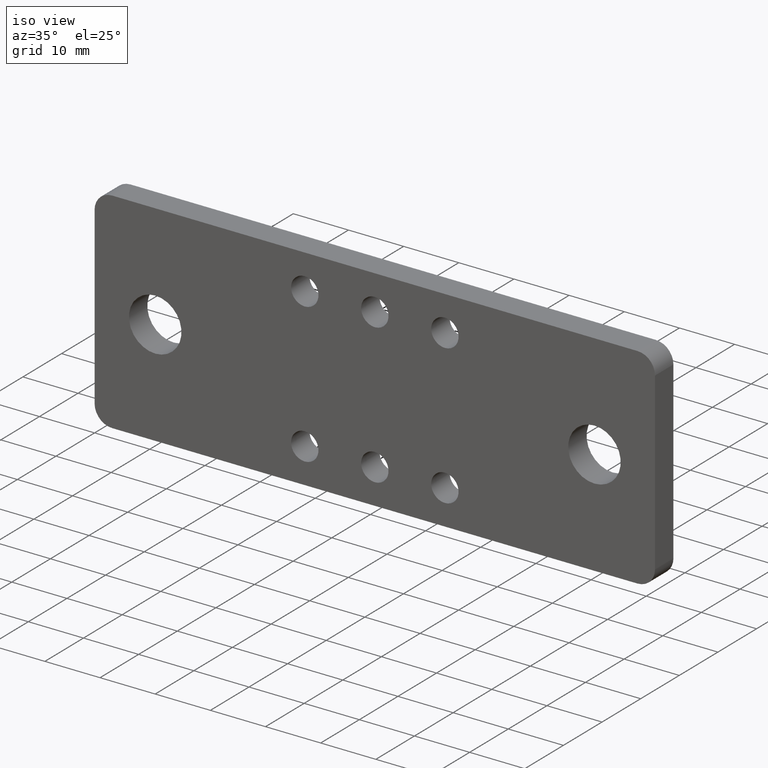
[diagram: clean part render]
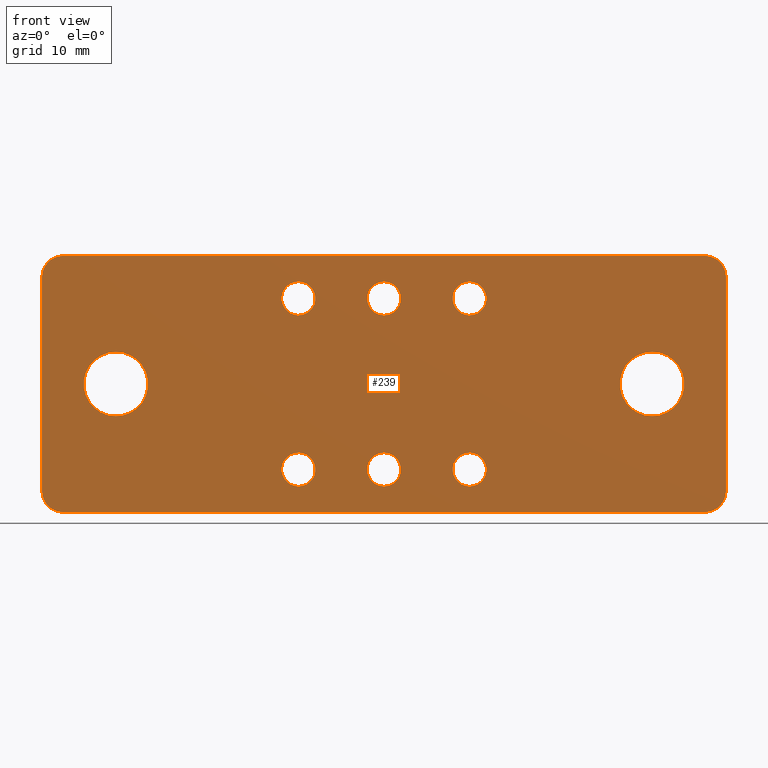
[diagram: tour spotlight — one face highlighted and labeled with its STEP entity id]
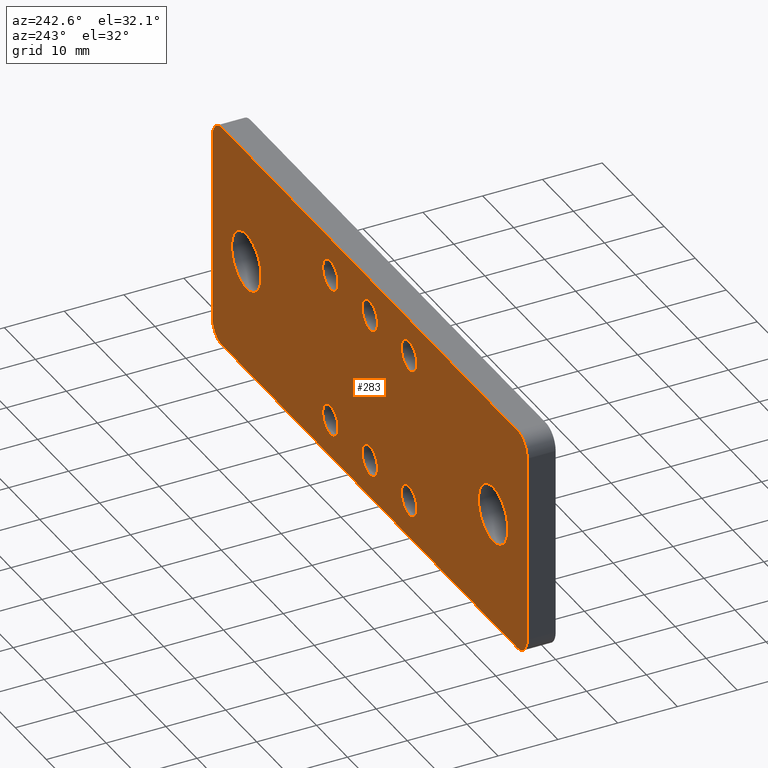
[diagram: tour spotlight — one face highlighted and labeled with its STEP entity id]
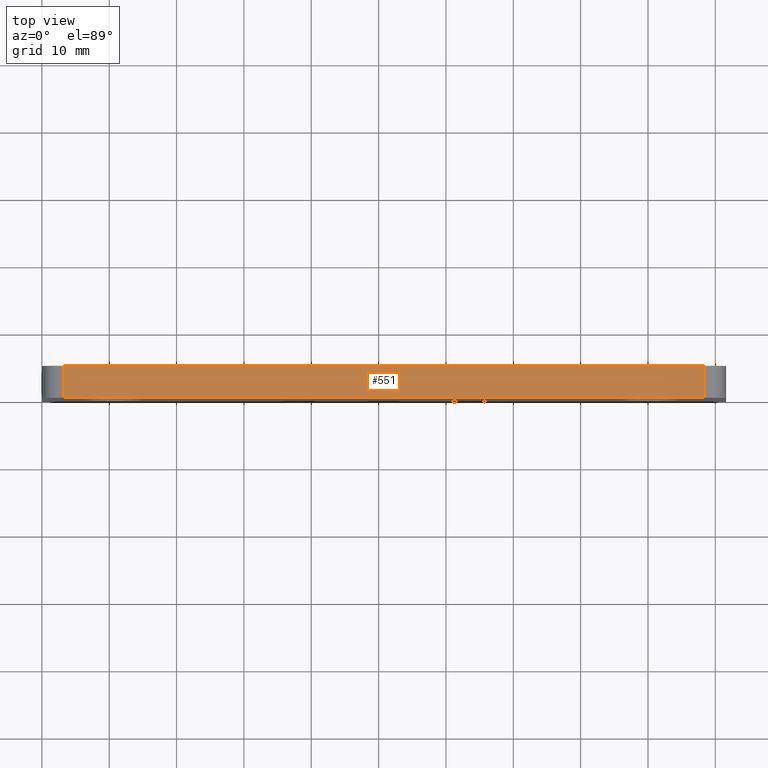
[diagram: tour spotlight — one face highlighted and labeled with its STEP entity id]
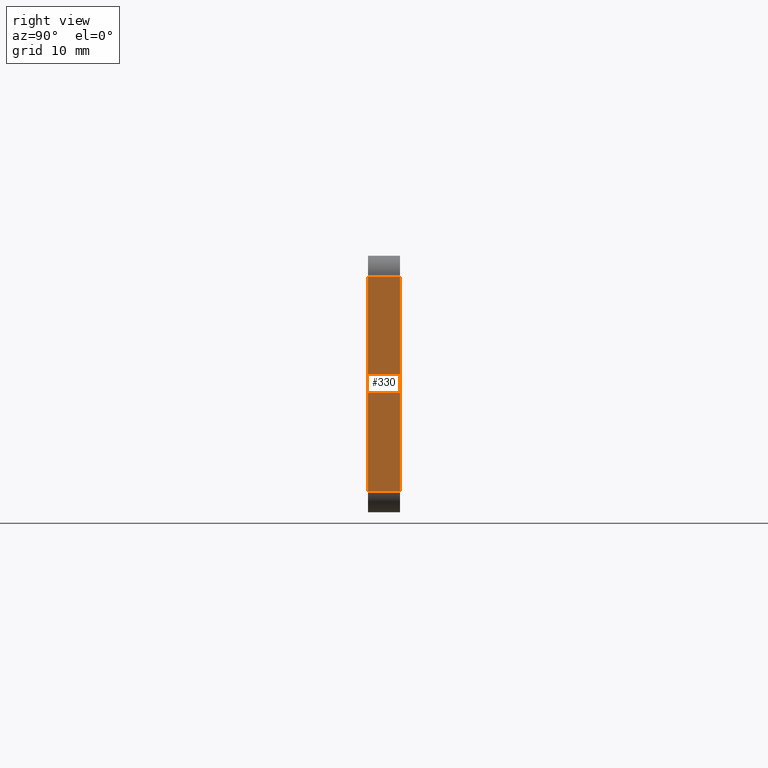
[diagram: tour spotlight — one face highlighted and labeled with its STEP entity id]
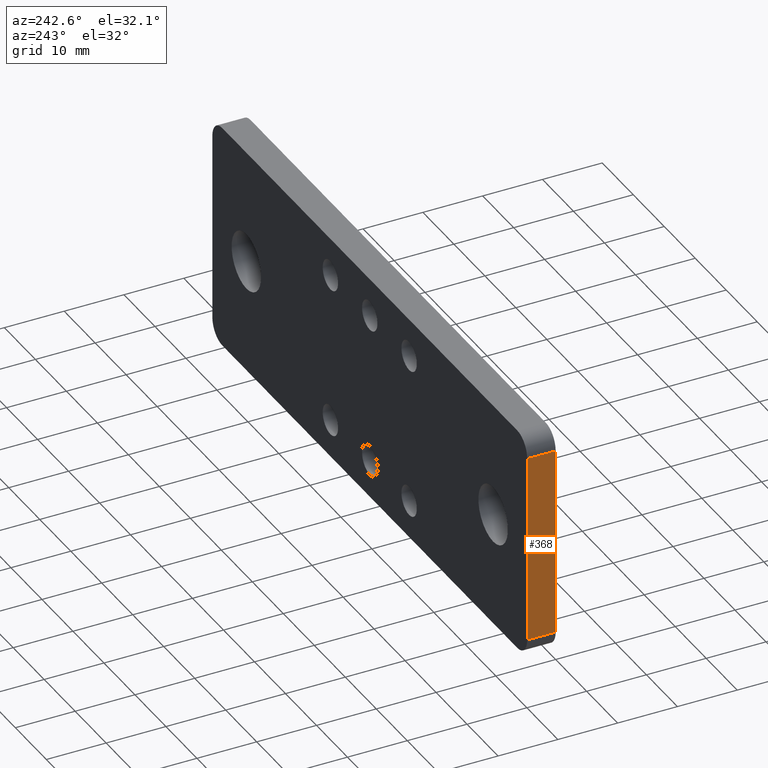
[diagram: tour spotlight — one face highlighted and labeled with its STEP entity id]
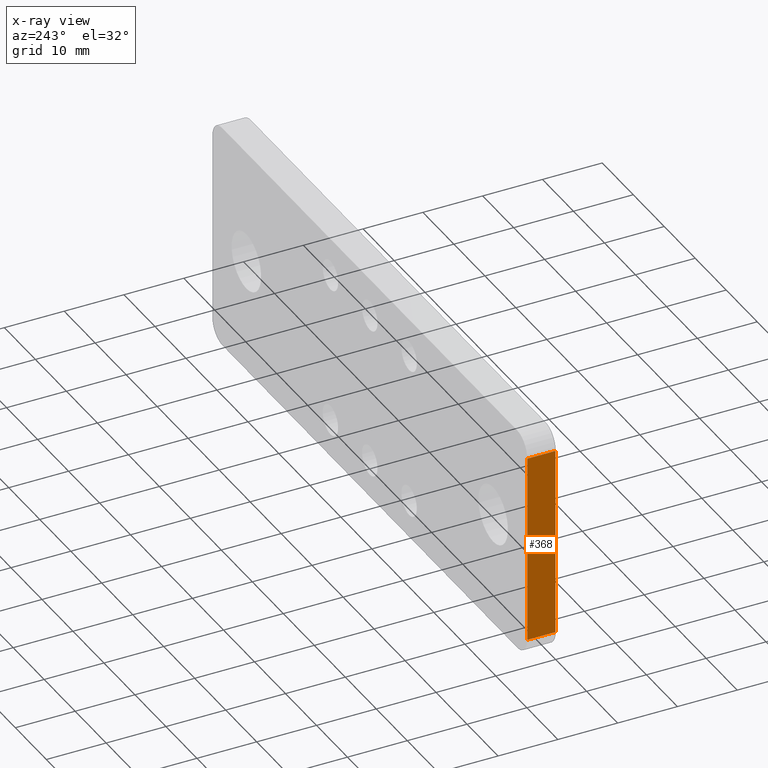
[diagram: x-ray of the same camera — body ghosted, this tour face saturated]
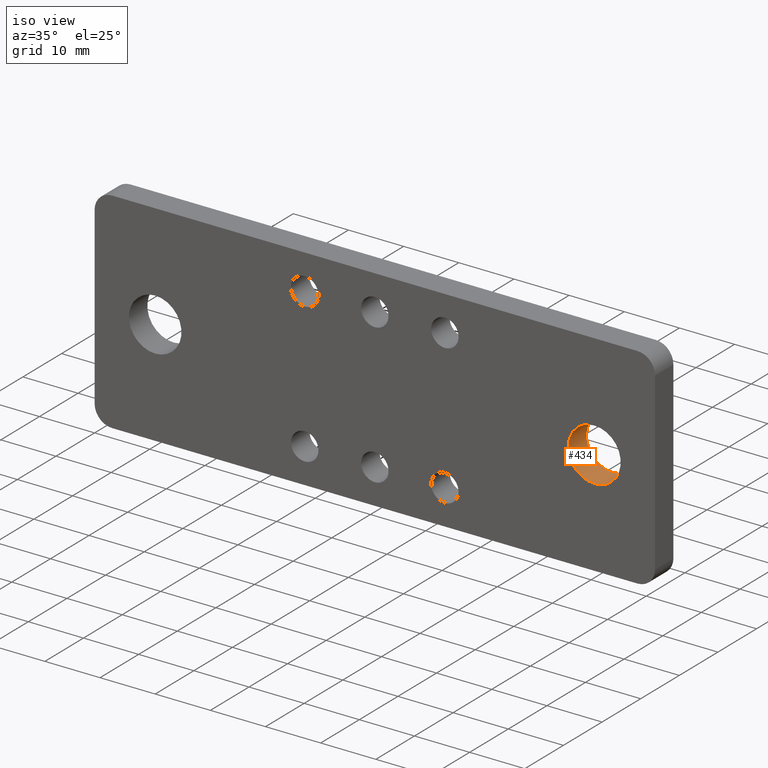
[diagram: tour spotlight — one face highlighted and labeled with its STEP entity id]
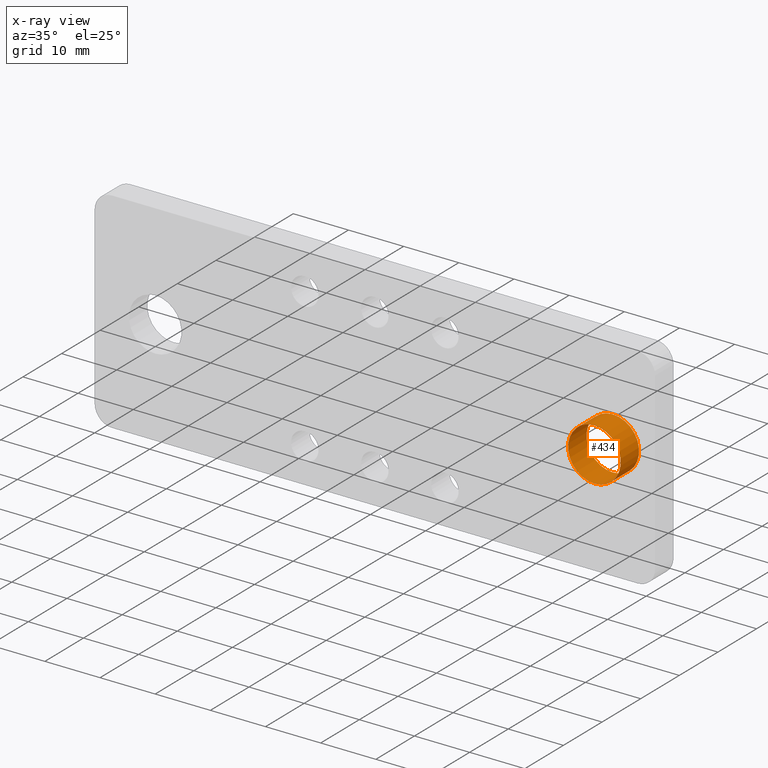
[diagram: x-ray of the same camera — body ghosted, this tour face saturated]
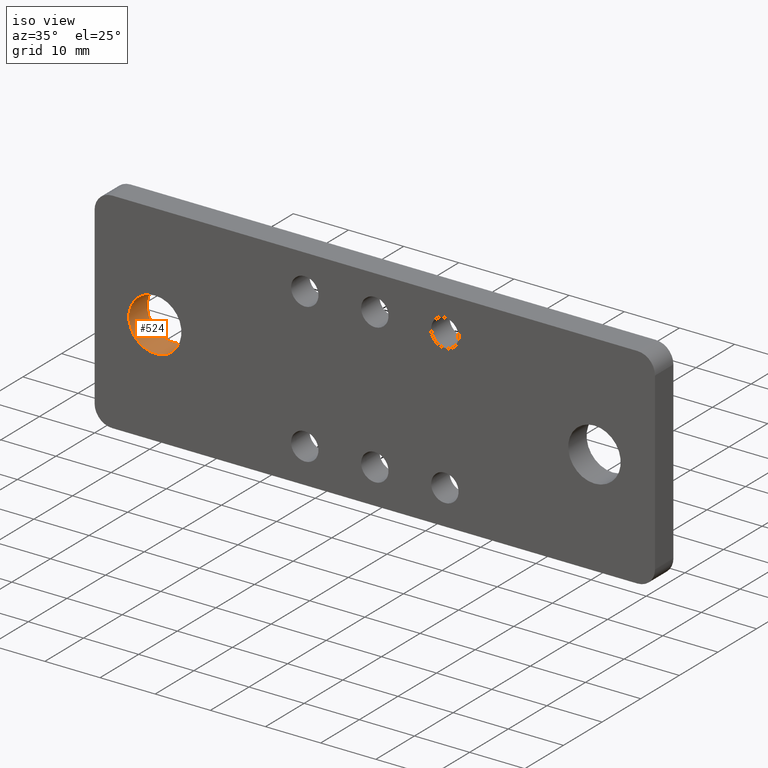
[diagram: tour spotlight — one face highlighted and labeled with its STEP entity id]
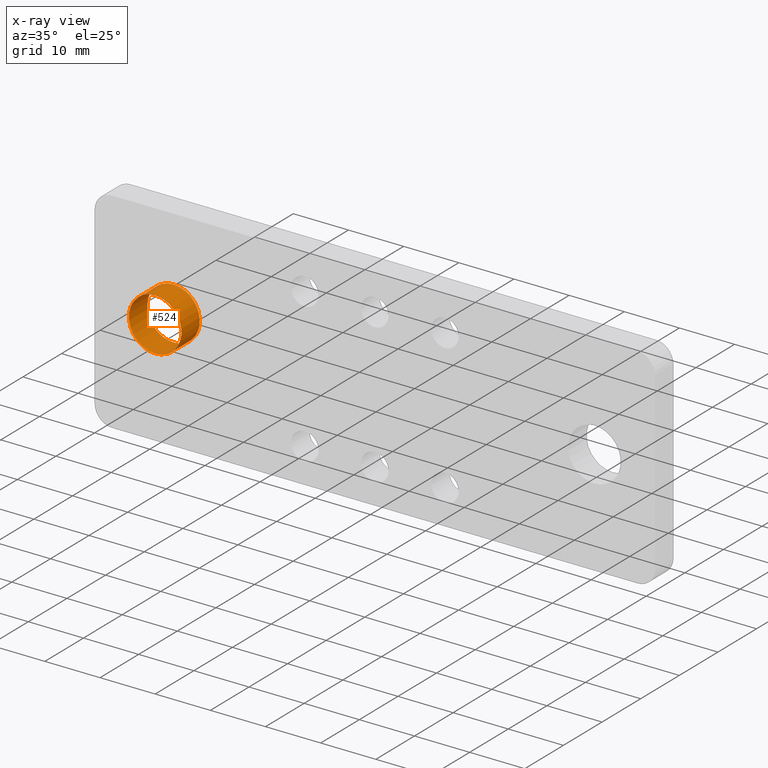
[diagram: x-ray of the same camera — body ghosted, this tour face saturated]
A machine part: a face-by-face anatomy tour. The part has 18 B-rep faces; the first image is the clean iso view, then the 7 largest visible faces are spotlighted one at a time (largest first), each with its STEP entity span.

Face 1 — front view, entity #239. In plain terms, the highlighted planar face has unit normal (0, -1, 0).
Definition (entity closure, byte-faithful):
#2 = ORIENTED_EDGE ( 'NONE', *, *, #118, .T. ) ;
#4 = AXIS2_PLACEMENT_3D ( 'NONE', #260, #274, #79 ) ;
#5 = ORIENTED_EDGE ( 'NONE', *, *, #437, .T. ) ;
#9 = AXIS2_PLACEMENT_3D ( 'NONE', #493, #564, #57 ) ;
#10 = AXIS2_PLACEMENT_3D ( 'NONE', #374, #372, #30 ) ;
#11 = AXIS2_PLACEMENT_3D ( 'NONE', #459, #611, #449 ) ;
#12 = EDGE_CURVE ( 'NONE', #347, #202, #545, .T. ) ;
#14 = VERTEX_POINT ( 'NONE', #92 ) ;
#21 = EDGE_LOOP ( 'NONE', ( #250, #2, #267, #361, #106, #502, #566, #311 ) ) ;
#25 = EDGE_CURVE ( 'NONE', #293, #202, #398, .T. ) ;
#29 = CARTESIAN_POINT ( 'NONE',  ( 0.0000000000000000000, 0.0000000000000000000, 0.0000000000000000000 ) ) ;
#30 = DIRECTION ( 'NONE',  ( 0.0000000000000000000, 0.0000000000000000000, -1.000000000000000000 ) ) ;
#36 = AXIS2_PLACEMENT_3D ( 'NONE', #402, #201, #422 ) ;
#45 = DIRECTION ( 'NONE',  ( 0.0000000000000000000, 1.000000000000000000, 0.0000000000000000000 ) ) ;
#47 = FACE_OUTER_BOUND ( 'NONE', #21, .T. ) ;
#49 = CARTESIAN_POINT ( 'NONE',  ( 3.875000000000000000, 0.0000000000000000000, 4.839273588776693858E-16 ) ) ;
#51 = ORIENTED_EDGE ( 'NONE', *, *, #102, .T. ) ;
#53 = CARTESIAN_POINT ( 'NONE',  ( 2.500000000000000000, 0.0000000000000000000, -1.151999999999999913 ) ) ;
#57 = DIRECTION ( 'NONE',  ( 0.0000000000000000000, 0.0000000000000000000, 1.000000000000000000 ) ) ;
#58 = AXIS2_PLACEMENT_3D ( 'NONE', #538, #45, #518 ) ;
#63 = CIRCLE ( 'NONE', #10, 0.09800000000000015643 ) ;
#65 = AXIS2_PLACEMENT_3D ( 'NONE', #281, #295, #305 ) ;
#74 = CARTESIAN_POINT ( 'NONE',  ( 3.875000000000000000, 0.0000000000000000000, -1.375000000000000222 ) ) ;
#79 = DIRECTION ( 'NONE',  ( 0.0000000000000000000, 0.0000000000000000000, -1.000000000000000000 ) ) ;
#87 = DIRECTION ( 'NONE',  ( 0.0000000000000000000, 0.0000000000000000000, -1.000000000000000000 ) ) ;
#88 = EDGE_LOOP ( 'NONE', ( #51 ) ) ;
#89 = CARTESIAN_POINT ( 'NONE',  ( 1.499999999999999778, 0.0000000000000000000, -0.1519999999999999130 ) ) ;
#92 = CARTESIAN_POINT ( 'NONE',  ( 0.4325000000000001066, 0.0000000000000000000, -0.5625000000000001110 ) ) ;
#93 = EDGE_CURVE ( 'NONE', #293, #223, #296, .T. ) ;
#95 = CARTESIAN_POINT ( 'NONE',  ( 3.567499999999999449, 0.0000000000000000000, -0.5625000000000001110 ) ) ;
#98 = CARTESIAN_POINT ( 'NONE',  ( 2.500000000000000000, 0.0000000000000000000, -0.3480000000000001981 ) ) ;
#102 = EDGE_CURVE ( 'NONE', #469, #469, #63, .T. ) ;
#103 = EDGE_CURVE ( 'NONE', #254, #254, #417, .T. ) ;
#105 = EDGE_CURVE ( 'NONE', #543, #223, #569, .T. ) ;
#106 = ORIENTED_EDGE ( 'NONE', *, *, #120, .F. ) ;
#108 = CARTESIAN_POINT ( 'NONE',  ( 2.000000000000000000, 0.0000000000000000000, -1.152000000000000135 ) ) ;
#109 = VERTEX_POINT ( 'NONE', #98 ) ;
#118 = EDGE_CURVE ( 'NONE', #543, #196, #152, .T. ) ;
#120 = EDGE_CURVE ( 'NONE', #347, #233, #172, .T. ) ;
#145 = EDGE_LOOP ( 'NONE', ( #176 ) ) ;
#152 = CIRCLE ( 'NONE', #11, 0.1249999999999999029 ) ;
#158 = CARTESIAN_POINT ( 'NONE',  ( 4.000000000000000000, 0.0000000000000000000, -1.375000000000000222 ) ) ;
#159 = CIRCLE ( 'NONE', #9, 0.09800000000000015643 ) ;
#165 = EDGE_CURVE ( 'NONE', #563, #563, #159, .T. ) ;
#172 = LINE ( 'NONE', #440, #487 ) ;
#176 = ORIENTED_EDGE ( 'NONE', *, *, #340, .T. ) ;
#181 = ORIENTED_EDGE ( 'NONE', *, *, #183, .T. ) ;
#183 = EDGE_CURVE ( 'NONE', #14, #14, #385, .T. ) ;
#186 = FACE_BOUND ( 'NONE', #595, .T. ) ;
#194 = EDGE_CURVE ( 'NONE', #473, #196, #285, .T. ) ;
#195 = DIRECTION ( 'NONE',  ( 3.055308241372560376E-27, -0.0000000000000000000, 1.000000000000000000 ) ) ;
#196 = VERTEX_POINT ( 'NONE', #554 ) ;
#201 = DIRECTION ( 'NONE',  ( 0.0000000000000000000, -1.000000000000000000, 0.0000000000000000000 ) ) ;
#202 = VERTEX_POINT ( 'NONE', #49 ) ;
#204 = CARTESIAN_POINT ( 'NONE',  ( 2.500000000000000000, 0.0000000000000000000, -0.2500000000000000555 ) ) ;
#207 = FACE_BOUND ( 'NONE', #145, .T. ) ;
#208 = CARTESIAN_POINT ( 'NONE',  ( 4.000000000000000000, 0.0000000000000000000, -0.1249999999999995004 ) ) ;
#217 = DIRECTION ( 'NONE',  ( 0.0000000000000000000, 0.0000000000000000000, 1.000000000000000000 ) ) ;
#223 = VERTEX_POINT ( 'NONE', #445 ) ;
#227 = EDGE_LOOP ( 'NONE', ( #447 ) ) ;
#233 = VERTEX_POINT ( 'NONE', #158 ) ;
#239 = ADVANCED_FACE ( 'NONE', ( #276, #320, #533, #333, #47, #448, #186, #207, #317 ), #444, .T. ) ;
#243 = CIRCLE ( 'NONE', #592, 0.09800000000000015643 ) ;
#249 = AXIS2_PLACEMENT_3D ( 'NONE', #395, #577, #400 ) ;
#250 = ORIENTED_EDGE ( 'NONE', *, *, #105, .F. ) ;
#252 = DIRECTION ( 'NONE',  ( 0.0000000000000000000, 1.000000000000000000, 0.0000000000000000000 ) ) ;
#254 = VERTEX_POINT ( 'NONE', #53 ) ;
#260 = CARTESIAN_POINT ( 'NONE',  ( 2.000000000000000000, 0.0000000000000000000, -0.2500000000000000555 ) ) ;
#267 = ORIENTED_EDGE ( 'NONE', *, *, #194, .F. ) ;
#268 = AXIS2_PLACEMENT_3D ( 'NONE', #353, #488, #378 ) ;
#274 = DIRECTION ( 'NONE',  ( 0.0000000000000000000, 1.000000000000000000, -0.0000000000000000000 ) ) ;
#276 = FACE_BOUND ( 'NONE', #227, .T. ) ;
#281 = CARTESIAN_POINT ( 'NONE',  ( 3.875000000000000000, 0.0000000000000000000, -0.1249999999999995004 ) ) ;
#282 = EDGE_CURVE ( 'NONE', #571, #571, #425, .T. ) ;
#285 = LINE ( 'NONE', #616, #432 ) ;
#293 = VERTEX_POINT ( 'NONE', #430 ) ;
#295 = DIRECTION ( 'NONE',  ( 0.0000000000000000000, -1.000000000000000000, -0.0000000000000000000 ) ) ;
#296 = CIRCLE ( 'NONE', #268, 0.1250000000000000000 ) ;
#305 = DIRECTION ( 'NONE',  ( 0.0000000000000000000, 0.0000000000000000000, -1.000000000000000000 ) ) ;
#310 = VECTOR ( 'NONE', #195, 39.37007874015748143 ) ;
#311 = ORIENTED_EDGE ( 'NONE', *, *, #93, .T. ) ;
#316 = VERTEX_POINT ( 'NONE', #95 ) ;
#317 = FACE_BOUND ( 'NONE', #596, .T. ) ;
#320 = FACE_BOUND ( 'NONE', #88, .T. ) ;
#333 = FACE_BOUND ( 'NONE', #496, .T. ) ;
#334 = CIRCLE ( 'NONE', #570, 0.1874999999999999167 ) ;
#340 = EDGE_CURVE ( 'NONE', #109, #109, #243, .T. ) ;
#347 = VERTEX_POINT ( 'NONE', #208 ) ;
#348 = CIRCLE ( 'NONE', #578, 0.09799999999999987887 ) ;
#353 = CARTESIAN_POINT ( 'NONE',  ( 0.1250000000000000000, 0.0000000000000000000, -0.1249999999999999584 ) ) ;
#361 = ORIENTED_EDGE ( 'NONE', *, *, #608, .T. ) ;
#363 = ORIENTED_EDGE ( 'NONE', *, *, #165, .T. ) ;
#367 = DIRECTION ( 'NONE',  ( 0.0000000000000000000, -1.000000000000000000, -0.0000000000000000000 ) ) ;
#372 = DIRECTION ( 'NONE',  ( 0.0000000000000000000, 1.000000000000000000, -0.0000000000000000000 ) ) ;
#374 = CARTESIAN_POINT ( 'NONE',  ( 1.499999999999999778, 0.0000000000000000000, -1.250000000000000000 ) ) ;
#378 = DIRECTION ( 'NONE',  ( 0.0000000000000000000, 0.0000000000000000000, -1.000000000000000000 ) ) ;
#383 = CARTESIAN_POINT ( 'NONE',  ( 0.0000000000000000000, 0.0000000000000000000, 0.0000000000000000000 ) ) ;
#385 = CIRCLE ( 'NONE', #58, 0.1874999999999999722 ) ;
#391 = DIRECTION ( 'NONE',  ( -1.000000000000000000, -0.0000000000000000000, -0.0000000000000000000 ) ) ;
#393 = EDGE_CURVE ( 'NONE', #424, #424, #348, .T. ) ;
#395 = CARTESIAN_POINT ( 'NONE',  ( 2.500000000000000000, 0.0000000000000000000, -1.250000000000000000 ) ) ;
#398 = LINE ( 'NONE', #29, #410 ) ;
#400 = DIRECTION ( 'NONE',  ( 0.0000000000000000000, 0.0000000000000000000, 1.000000000000000000 ) ) ;
#402 = CARTESIAN_POINT ( 'NONE',  ( 0.0000000000000000000, 0.0000000000000000000, 0.0000000000000000000 ) ) ;
#405 = CARTESIAN_POINT ( 'NONE',  ( 2.000000000000000000, 0.0000000000000000000, -0.3479999999999999760 ) ) ;
#410 = VECTOR ( 'NONE', #599, 39.37007874015748143 ) ;
#417 = CIRCLE ( 'NONE', #249, 0.09800000000000015643 ) ;
#422 = DIRECTION ( 'NONE',  ( 0.0000000000000000000, 0.0000000000000000000, -1.000000000000000000 ) ) ;
#424 = VERTEX_POINT ( 'NONE', #108 ) ;
#425 = CIRCLE ( 'NONE', #4, 0.09799999999999987887 ) ;
#430 = CARTESIAN_POINT ( 'NONE',  ( 0.1249999999999999861, 0.0000000000000000000, 1.561055996379578366E-17 ) ) ;
#432 = VECTOR ( 'NONE', #391, 39.37007874015748143 ) ;
#437 = EDGE_CURVE ( 'NONE', #316, #316, #334, .T. ) ;
#440 = CARTESIAN_POINT ( 'NONE',  ( 4.000000000000000000, 0.0000000000000000000, 4.995379188414651756E-16 ) ) ;
#442 = DIRECTION ( 'NONE',  ( 0.0000000000000000000, 0.0000000000000000000, -1.000000000000000000 ) ) ;
#444 = PLANE ( 'NONE',  #36 ) ;
#445 = CARTESIAN_POINT ( 'NONE',  ( -3.819135301715697780E-28, 0.0000000000000000000, -0.1249999999999999306 ) ) ;
#447 = ORIENTED_EDGE ( 'NONE', *, *, #282, .T. ) ;
#448 = FACE_BOUND ( 'NONE', #617, .T. ) ;
#449 = DIRECTION ( 'NONE',  ( 0.0000000000000000000, 0.0000000000000000000, -1.000000000000000000 ) ) ;
#459 = CARTESIAN_POINT ( 'NONE',  ( 0.1250000000000000000, 0.0000000000000000000, -1.375000000000000222 ) ) ;
#469 = VERTEX_POINT ( 'NONE', #603 ) ;
#473 = VERTEX_POINT ( 'NONE', #485 ) ;
#474 = CIRCLE ( 'NONE', #527, 0.1249999999999999029 ) ;
#479 = DIRECTION ( 'NONE',  ( 0.0000000000000000000, 1.000000000000000000, 0.0000000000000000000 ) ) ;
#480 = DIRECTION ( 'NONE',  ( 0.0000000000000000000, 0.0000000000000000000, 1.000000000000000000 ) ) ;
#482 = ORIENTED_EDGE ( 'NONE', *, *, #103, .T. ) ;
#483 = CARTESIAN_POINT ( 'NONE',  ( 3.567499999999999449, 0.0000000000000000000, -0.7500000000000001110 ) ) ;
#485 = CARTESIAN_POINT ( 'NONE',  ( 3.875000000000000000, 0.0000000000000000000, -1.500000000000000222 ) ) ;
#487 = VECTOR ( 'NONE', #442, 39.37007874015748143 ) ;
#488 = DIRECTION ( 'NONE',  ( 0.0000000000000000000, -1.000000000000000000, -0.0000000000000000000 ) ) ;
#493 = CARTESIAN_POINT ( 'NONE',  ( 1.499999999999999778, 0.0000000000000000000, -0.2500000000000000555 ) ) ;
#496 = EDGE_LOOP ( 'NONE', ( #181 ) ) ;
#502 = ORIENTED_EDGE ( 'NONE', *, *, #12, .T. ) ;
#516 = DIRECTION ( 'NONE',  ( 0.0000000000000000000, 1.000000000000000000, -0.0000000000000000000 ) ) ;
#518 = DIRECTION ( 'NONE',  ( 0.0000000000000000000, 0.0000000000000000000, 1.000000000000000000 ) ) ;
#527 = AXIS2_PLACEMENT_3D ( 'NONE', #74, #367, #87 ) ;
#533 = FACE_BOUND ( 'NONE', #559, .T. ) ;
#538 = CARTESIAN_POINT ( 'NONE',  ( 0.4325000000000001066, 0.0000000000000000000, -0.7500000000000001110 ) ) ;
#540 = CARTESIAN_POINT ( 'NONE',  ( 2.000000000000000000, 0.0000000000000000000, -1.250000000000000000 ) ) ;
#543 = VERTEX_POINT ( 'NONE', #584 ) ;
#545 = CIRCLE ( 'NONE', #65, 0.1250000000000000278 ) ;
#554 = CARTESIAN_POINT ( 'NONE',  ( 0.1250000000000000000, 0.0000000000000000000, -1.500000000000000222 ) ) ;
#559 = EDGE_LOOP ( 'NONE', ( #567 ) ) ;
#563 = VERTEX_POINT ( 'NONE', #89 ) ;
#564 = DIRECTION ( 'NONE',  ( 0.0000000000000000000, 1.000000000000000000, 0.0000000000000000000 ) ) ;
#566 = ORIENTED_EDGE ( 'NONE', *, *, #25, .F. ) ;
#567 = ORIENTED_EDGE ( 'NONE', *, *, #393, .T. ) ;
#569 = LINE ( 'NONE', #383, #310 ) ;
#570 = AXIS2_PLACEMENT_3D ( 'NONE', #483, #479, #480 ) ;
#571 = VERTEX_POINT ( 'NONE', #405 ) ;
#577 = DIRECTION ( 'NONE',  ( 0.0000000000000000000, 1.000000000000000000, 0.0000000000000000000 ) ) ;
#578 = AXIS2_PLACEMENT_3D ( 'NONE', #540, #252, #217 ) ;
#584 = CARTESIAN_POINT ( 'NONE',  ( -4.201048831887269307E-27, 0.0000000000000000000, -1.374999999999999778 ) ) ;
#588 = DIRECTION ( 'NONE',  ( 0.0000000000000000000, 0.0000000000000000000, -1.000000000000000000 ) ) ;
#592 = AXIS2_PLACEMENT_3D ( 'NONE', #204, #516, #588 ) ;
#595 = EDGE_LOOP ( 'NONE', ( #482 ) ) ;
#596 = EDGE_LOOP ( 'NONE', ( #363 ) ) ;
#599 = DIRECTION ( 'NONE',  ( 1.000000000000000000, 0.0000000000000000000, 1.248844797103662939E-16 ) ) ;
#603 = CARTESIAN_POINT ( 'NONE',  ( 1.499999999999999778, 0.0000000000000000000, -1.348000000000000309 ) ) ;
#608 = EDGE_CURVE ( 'NONE', #473, #233, #474, .T. ) ;
#611 = DIRECTION ( 'NONE',  ( 0.0000000000000000000, -1.000000000000000000, -0.0000000000000000000 ) ) ;
#616 = CARTESIAN_POINT ( 'NONE',  ( -4.582962362058840026E-27, 0.0000000000000000000, -1.500000000000000222 ) ) ;
#617 = EDGE_LOOP ( 'NONE', ( #5 ) ) ;

Face 2 — auxiliary view, entity #283. In plain terms, the highlighted planar face has unit normal (0, -1, 0).
Definition (entity closure, byte-faithful):
#17 = ORIENTED_EDGE ( 'NONE', *, *, #112, .F. ) ;
#18 = CIRCLE ( 'NONE', #259, 0.09800000000000015643 ) ;
#19 = EDGE_LOOP ( 'NONE', ( #246 ) ) ;
#22 = AXIS2_PLACEMENT_3D ( 'NONE', #472, #505, #498 ) ;
#24 = EDGE_LOOP ( 'NONE', ( #213 ) ) ;
#26 = VECTOR ( 'NONE', #504, 39.37007874015748143 ) ;
#27 = DIRECTION ( 'NONE',  ( 0.0000000000000000000, 0.0000000000000000000, 1.000000000000000000 ) ) ;
#28 = ORIENTED_EDGE ( 'NONE', *, *, #174, .T. ) ;
#38 = EDGE_CURVE ( 'NONE', #189, #548, #304, .T. ) ;
#41 = CIRCLE ( 'NONE', #54, 0.09799999999999987887 ) ;
#43 = FACE_BOUND ( 'NONE', #64, .T. ) ;
#54 = AXIS2_PLACEMENT_3D ( 'NONE', #357, #501, #27 ) ;
#55 = FACE_BOUND ( 'NONE', #67, .T. ) ;
#60 = EDGE_CURVE ( 'NONE', #548, #156, #562, .T. ) ;
#62 = CARTESIAN_POINT ( 'NONE',  ( 2.000000000000000000, 0.1875000000000000278, -0.3479999999999999760 ) ) ;
#64 = EDGE_LOOP ( 'NONE', ( #351 ) ) ;
#66 = ORIENTED_EDGE ( 'NONE', *, *, #60, .T. ) ;
#67 = EDGE_LOOP ( 'NONE', ( #327 ) ) ;
#69 = VECTOR ( 'NONE', #561, 39.37007874015748143 ) ;
#70 = VERTEX_POINT ( 'NONE', #91 ) ;
#71 = CARTESIAN_POINT ( 'NONE',  ( 3.567499999999999449, 0.1875000000000000278, -0.5625000000000001110 ) ) ;
#78 = CARTESIAN_POINT ( 'NONE',  ( 2.000000000000000000, 0.1875000000000000278, -1.152000000000000135 ) ) ;
#82 = CIRCLE ( 'NONE', #598, 0.09799999999999987887 ) ;
#83 = AXIS2_PLACEMENT_3D ( 'NONE', #537, #292, #544 ) ;
#86 = CARTESIAN_POINT ( 'NONE',  ( 0.4325000000000001066, 0.1875000000000000278, -0.5625000000000001110 ) ) ;
#91 = CARTESIAN_POINT ( 'NONE',  ( 2.500000000000000000, 0.1875000000000000278, -0.3480000000000001981 ) ) ;
#94 = CARTESIAN_POINT ( 'NONE',  ( 2.500000000000000000, 0.1875000000000000278, -1.151999999999999913 ) ) ;
#97 = CARTESIAN_POINT ( 'NONE',  ( 1.499999999999999778, 0.1875000000000000278, -0.1519999999999999130 ) ) ;
#107 = VECTOR ( 'NONE', #509, 39.37007874015748143 ) ;
#111 = EDGE_CURVE ( 'NONE', #142, #467, #197, .T. ) ;
#112 = EDGE_CURVE ( 'NONE', #362, #362, #18, .T. ) ;
#125 = DIRECTION ( 'NONE',  ( 0.0000000000000000000, 0.0000000000000000000, 1.000000000000000000 ) ) ;
#133 = AXIS2_PLACEMENT_3D ( 'NONE', #303, #336, #337 ) ;
#136 = AXIS2_PLACEMENT_3D ( 'NONE', #557, #373, #589 ) ;
#140 = AXIS2_PLACEMENT_3D ( 'NONE', #359, #164, #619 ) ;
#142 = VERTEX_POINT ( 'NONE', #494 ) ;
#143 = EDGE_CURVE ( 'NONE', #225, #225, #343, .T. ) ;
#144 = CARTESIAN_POINT ( 'NONE',  ( 0.1250000000000000000, 0.1875000000000000278, -0.1249999999999999584 ) ) ;
#147 = AXIS2_PLACEMENT_3D ( 'NONE', #144, #312, #306 ) ;
#149 = EDGE_CURVE ( 'NONE', #314, #142, #534, .T. ) ;
#150 = EDGE_CURVE ( 'NONE', #70, #70, #499, .T. ) ;
#153 = EDGE_LOOP ( 'NONE', ( #161 ) ) ;
#155 = DIRECTION ( 'NONE',  ( 0.0000000000000000000, -1.000000000000000000, 0.0000000000000000000 ) ) ;
#156 = VERTEX_POINT ( 'NONE', #513 ) ;
#160 = EDGE_CURVE ( 'NONE', #156, #586, #180, .T. ) ;
#161 = ORIENTED_EDGE ( 'NONE', *, *, #168, .F. ) ;
#164 = DIRECTION ( 'NONE',  ( 0.0000000000000000000, 1.000000000000000000, 0.0000000000000000000 ) ) ;
#168 = EDGE_CURVE ( 'NONE', #272, #272, #271, .T. ) ;
#170 = DIRECTION ( 'NONE',  ( 0.0000000000000000000, 0.0000000000000000000, -1.000000000000000000 ) ) ;
#174 = EDGE_CURVE ( 'NONE', #586, #314, #575, .T. ) ;
#180 = LINE ( 'NONE', #503, #26 ) ;
#182 = FACE_BOUND ( 'NONE', #153, .T. ) ;
#188 = CARTESIAN_POINT ( 'NONE',  ( 2.000000000000000000, 0.1875000000000000278, -0.2500000000000000555 ) ) ;
#189 = VERTEX_POINT ( 'NONE', #593 ) ;
#191 = ORIENTED_EDGE ( 'NONE', *, *, #160, .T. ) ;
#193 = FACE_BOUND ( 'NONE', #24, .T. ) ;
#197 = CIRCLE ( 'NONE', #429, 0.1250000000000000278 ) ;
#206 = CARTESIAN_POINT ( 'NONE',  ( 1.499999999999999778, 0.1875000000000000278, -0.2500000000000000555 ) ) ;
#211 = EDGE_CURVE ( 'NONE', #476, #476, #41, .T. ) ;
#213 = ORIENTED_EDGE ( 'NONE', *, *, #294, .F. ) ;
#214 = CIRCLE ( 'NONE', #610, 0.09800000000000015643 ) ;
#215 = CARTESIAN_POINT ( 'NONE',  ( 4.000000000000000000, 0.1875000000000000278, -0.1249999999999995004 ) ) ;
#225 = VERTEX_POINT ( 'NONE', #86 ) ;
#232 = ORIENTED_EDGE ( 'NONE', *, *, #38, .T. ) ;
#246 = ORIENTED_EDGE ( 'NONE', *, *, #143, .F. ) ;
#255 = EDGE_LOOP ( 'NONE', ( #269 ) ) ;
#256 = EDGE_CURVE ( 'NONE', #321, #321, #335, .T. ) ;
#259 = AXIS2_PLACEMENT_3D ( 'NONE', #446, #419, #433 ) ;
#261 = VERTEX_POINT ( 'NONE', #273 ) ;
#264 = ORIENTED_EDGE ( 'NONE', *, *, #256, .F. ) ;
#269 = ORIENTED_EDGE ( 'NONE', *, *, #150, .F. ) ;
#271 = CIRCLE ( 'NONE', #136, 0.09800000000000015643 ) ;
#272 = VERTEX_POINT ( 'NONE', #94 ) ;
#273 = CARTESIAN_POINT ( 'NONE',  ( 4.000000000000000000, 0.1875000000000000278, -1.375000000000000222 ) ) ;
#279 = VERTEX_POINT ( 'NONE', #62 ) ;
#283 = ADVANCED_FACE ( 'NONE', ( #386, #288, #525, #43, #182, #399, #546, #55, #193 ), #302, .F. ) ;
#288 = FACE_BOUND ( 'NONE', #19, .T. ) ;
#290 = EDGE_CURVE ( 'NONE', #467, #261, #411, .T. ) ;
#292 = DIRECTION ( 'NONE',  ( 0.0000000000000000000, 1.000000000000000000, -0.0000000000000000000 ) ) ;
#294 = EDGE_CURVE ( 'NONE', #418, #418, #214, .T. ) ;
#298 = CARTESIAN_POINT ( 'NONE',  ( 4.000000000000000000, 0.1875000000000000278, 4.995379188414651756E-16 ) ) ;
#302 = PLANE ( 'NONE',  #615 ) ;
#303 = CARTESIAN_POINT ( 'NONE',  ( 0.1250000000000000000, 0.1875000000000000278, -1.375000000000000222 ) ) ;
#304 = LINE ( 'NONE', #308, #69 ) ;
#306 = DIRECTION ( 'NONE',  ( 0.0000000000000000000, 0.0000000000000000000, -1.000000000000000000 ) ) ;
#307 = VECTOR ( 'NONE', #621, 39.37007874015748143 ) ;
#308 = CARTESIAN_POINT ( 'NONE',  ( -4.582962362058840026E-27, 0.1875000000000000278, -1.500000000000000222 ) ) ;
#312 = DIRECTION ( 'NONE',  ( -0.0000000000000000000, 1.000000000000000000, 0.0000000000000000000 ) ) ;
#314 = VERTEX_POINT ( 'NONE', #492 ) ;
#315 = DIRECTION ( 'NONE',  ( 0.0000000000000000000, 1.000000000000000000, 0.0000000000000000000 ) ) ;
#321 = VERTEX_POINT ( 'NONE', #71 ) ;
#327 = ORIENTED_EDGE ( 'NONE', *, *, #332, .F. ) ;
#332 = EDGE_CURVE ( 'NONE', #279, #279, #82, .T. ) ;
#335 = CIRCLE ( 'NONE', #140, 0.1874999999999999167 ) ;
#336 = DIRECTION ( 'NONE',  ( -0.0000000000000000000, 1.000000000000000000, 0.0000000000000000000 ) ) ;
#337 = DIRECTION ( 'NONE',  ( 0.0000000000000000000, 0.0000000000000000000, -1.000000000000000000 ) ) ;
#343 = CIRCLE ( 'NONE', #22, 0.1874999999999999722 ) ;
#351 = ORIENTED_EDGE ( 'NONE', *, *, #211, .F. ) ;
#352 = CIRCLE ( 'NONE', #558, 0.1249999999999999029 ) ;
#357 = CARTESIAN_POINT ( 'NONE',  ( 2.000000000000000000, 0.1875000000000000278, -1.250000000000000000 ) ) ;
#358 = EDGE_LOOP ( 'NONE', ( #17 ) ) ;
#359 = CARTESIAN_POINT ( 'NONE',  ( 3.567499999999999449, 0.1875000000000000278, -0.7500000000000001110 ) ) ;
#362 = VERTEX_POINT ( 'NONE', #602 ) ;
#366 = EDGE_LOOP ( 'NONE', ( #232, #66, #191, #28, #394, #431, #420, #371 ) ) ;
#370 = DIRECTION ( 'NONE',  ( -0.0000000000000000000, 1.000000000000000000, 0.0000000000000000000 ) ) ;
#371 = ORIENTED_EDGE ( 'NONE', *, *, #590, .T. ) ;
#373 = DIRECTION ( 'NONE',  ( 0.0000000000000000000, 1.000000000000000000, 0.0000000000000000000 ) ) ;
#386 = FACE_OUTER_BOUND ( 'NONE', #366, .T. ) ;
#392 = DIRECTION ( 'NONE',  ( 0.0000000000000000000, 0.0000000000000000000, -1.000000000000000000 ) ) ;
#394 = ORIENTED_EDGE ( 'NONE', *, *, #149, .T. ) ;
#399 = FACE_BOUND ( 'NONE', #358, .T. ) ;
#409 = DIRECTION ( 'NONE',  ( 0.0000000000000000000, 0.0000000000000000000, -1.000000000000000000 ) ) ;
#411 = LINE ( 'NONE', #298, #307 ) ;
#418 = VERTEX_POINT ( 'NONE', #97 ) ;
#419 = DIRECTION ( 'NONE',  ( 0.0000000000000000000, 1.000000000000000000, -0.0000000000000000000 ) ) ;
#420 = ORIENTED_EDGE ( 'NONE', *, *, #290, .T. ) ;
#428 = CARTESIAN_POINT ( 'NONE',  ( 3.875000000000000000, 0.1875000000000000278, -0.1249999999999995004 ) ) ;
#429 = AXIS2_PLACEMENT_3D ( 'NONE', #428, #370, #409 ) ;
#431 = ORIENTED_EDGE ( 'NONE', *, *, #111, .T. ) ;
#433 = DIRECTION ( 'NONE',  ( 0.0000000000000000000, 0.0000000000000000000, -1.000000000000000000 ) ) ;
#436 = EDGE_LOOP ( 'NONE', ( #264 ) ) ;
#438 = CARTESIAN_POINT ( 'NONE',  ( 0.0000000000000000000, 0.1875000000000000278, 0.0000000000000000000 ) ) ;
#446 = CARTESIAN_POINT ( 'NONE',  ( 1.499999999999999778, 0.1875000000000000278, -1.250000000000000000 ) ) ;
#467 = VERTEX_POINT ( 'NONE', #215 ) ;
#472 = CARTESIAN_POINT ( 'NONE',  ( 0.4325000000000001066, 0.1875000000000000278, -0.7500000000000001110 ) ) ;
#476 = VERTEX_POINT ( 'NONE', #78 ) ;
#492 = CARTESIAN_POINT ( 'NONE',  ( 0.1249999999999999861, 0.1875000000000000278, 1.561055996379578366E-17 ) ) ;
#494 = CARTESIAN_POINT ( 'NONE',  ( 3.875000000000000000, 0.1875000000000000278, 4.839273588776693858E-16 ) ) ;
#495 = CARTESIAN_POINT ( 'NONE',  ( 0.0000000000000000000, 0.1875000000000000278, 0.0000000000000000000 ) ) ;
#498 = DIRECTION ( 'NONE',  ( 0.0000000000000000000, 0.0000000000000000000, 1.000000000000000000 ) ) ;
#499 = CIRCLE ( 'NONE', #83, 0.09800000000000015643 ) ;
#501 = DIRECTION ( 'NONE',  ( 0.0000000000000000000, 1.000000000000000000, 0.0000000000000000000 ) ) ;
#503 = CARTESIAN_POINT ( 'NONE',  ( 0.0000000000000000000, 0.1875000000000000278, 0.0000000000000000000 ) ) ;
#504 = DIRECTION ( 'NONE',  ( 3.055308241372560376E-27, -0.0000000000000000000, 1.000000000000000000 ) ) ;
#505 = DIRECTION ( 'NONE',  ( 0.0000000000000000000, 1.000000000000000000, 0.0000000000000000000 ) ) ;
#509 = DIRECTION ( 'NONE',  ( 1.000000000000000000, 0.0000000000000000000, 1.248844797103662939E-16 ) ) ;
#513 = CARTESIAN_POINT ( 'NONE',  ( -4.201048831887269307E-27, 0.1875000000000000278, -1.374999999999999778 ) ) ;
#525 = FACE_BOUND ( 'NONE', #436, .T. ) ;
#534 = LINE ( 'NONE', #495, #107 ) ;
#537 = CARTESIAN_POINT ( 'NONE',  ( 2.500000000000000000, 0.1875000000000000278, -0.2500000000000000555 ) ) ;
#544 = DIRECTION ( 'NONE',  ( 0.0000000000000000000, 0.0000000000000000000, -1.000000000000000000 ) ) ;
#546 = FACE_BOUND ( 'NONE', #255, .T. ) ;
#548 = VERTEX_POINT ( 'NONE', #585 ) ;
#557 = CARTESIAN_POINT ( 'NONE',  ( 2.500000000000000000, 0.1875000000000000278, -1.250000000000000000 ) ) ;
#558 = AXIS2_PLACEMENT_3D ( 'NONE', #573, #580, #579 ) ;
#561 = DIRECTION ( 'NONE',  ( -1.000000000000000000, -0.0000000000000000000, -0.0000000000000000000 ) ) ;
#562 = CIRCLE ( 'NONE', #133, 0.1249999999999999029 ) ;
#573 = CARTESIAN_POINT ( 'NONE',  ( 3.875000000000000000, 0.1875000000000000278, -1.375000000000000222 ) ) ;
#575 = CIRCLE ( 'NONE', #147, 0.1250000000000000000 ) ;
#579 = DIRECTION ( 'NONE',  ( 0.0000000000000000000, 0.0000000000000000000, -1.000000000000000000 ) ) ;
#580 = DIRECTION ( 'NONE',  ( -0.0000000000000000000, 1.000000000000000000, 0.0000000000000000000 ) ) ;
#585 = CARTESIAN_POINT ( 'NONE',  ( 0.1250000000000000000, 0.1875000000000000278, -1.500000000000000222 ) ) ;
#586 = VERTEX_POINT ( 'NONE', #604 ) ;
#589 = DIRECTION ( 'NONE',  ( 0.0000000000000000000, 0.0000000000000000000, 1.000000000000000000 ) ) ;
#590 = EDGE_CURVE ( 'NONE', #261, #189, #352, .T. ) ;
#593 = CARTESIAN_POINT ( 'NONE',  ( 3.875000000000000000, 0.1875000000000000278, -1.500000000000000222 ) ) ;
#598 = AXIS2_PLACEMENT_3D ( 'NONE', #188, #605, #170 ) ;
#602 = CARTESIAN_POINT ( 'NONE',  ( 1.499999999999999778, 0.1875000000000000278, -1.348000000000000309 ) ) ;
#604 = CARTESIAN_POINT ( 'NONE',  ( -3.819135301715697780E-28, 0.1875000000000000278, -0.1249999999999999306 ) ) ;
#605 = DIRECTION ( 'NONE',  ( 0.0000000000000000000, 1.000000000000000000, -0.0000000000000000000 ) ) ;
#610 = AXIS2_PLACEMENT_3D ( 'NONE', #206, #315, #125 ) ;
#615 = AXIS2_PLACEMENT_3D ( 'NONE', #438, #155, #392 ) ;
#619 = DIRECTION ( 'NONE',  ( 0.0000000000000000000, 0.0000000000000000000, 1.000000000000000000 ) ) ;
#621 = DIRECTION ( 'NONE',  ( 0.0000000000000000000, 0.0000000000000000000, -1.000000000000000000 ) ) ;

Face 3 — top view, entity #551. In plain terms, the highlighted planar face has unit normal (0, 0, -1).
Definition (entity closure, byte-faithful):
#6 = EDGE_LOOP ( 'NONE', ( #46, #532, #390, #134 ) ) ;
#25 = EDGE_CURVE ( 'NONE', #293, #202, #398, .T. ) ;
#29 = CARTESIAN_POINT ( 'NONE',  ( 0.0000000000000000000, 0.0000000000000000000, 0.0000000000000000000 ) ) ;
#46 = ORIENTED_EDGE ( 'NONE', *, *, #149, .F. ) ;
#49 = CARTESIAN_POINT ( 'NONE',  ( 3.875000000000000000, 0.0000000000000000000, 4.839273588776693858E-16 ) ) ;
#77 = EDGE_CURVE ( 'NONE', #314, #293, #404, .T. ) ;
#107 = VECTOR ( 'NONE', #509, 39.37007874015748143 ) ;
#123 = LINE ( 'NONE', #154, #618 ) ;
#134 = ORIENTED_EDGE ( 'NONE', *, *, #364, .T. ) ;
#142 = VERTEX_POINT ( 'NONE', #494 ) ;
#149 = EDGE_CURVE ( 'NONE', #314, #142, #534, .T. ) ;
#154 = CARTESIAN_POINT ( 'NONE',  ( 3.875000000000000000, 0.1875000000000000278, 4.839273588776694844E-16 ) ) ;
#202 = VERTEX_POINT ( 'NONE', #49 ) ;
#210 = DIRECTION ( 'NONE',  ( -0.0000000000000000000, 1.000000000000000000, -0.0000000000000000000 ) ) ;
#293 = VERTEX_POINT ( 'NONE', #430 ) ;
#314 = VERTEX_POINT ( 'NONE', #492 ) ;
#324 = CARTESIAN_POINT ( 'NONE',  ( 0.1249999999999999861, 0.1875000000000000278, 1.561055996379578674E-17 ) ) ;
#350 = DIRECTION ( 'NONE',  ( 0.0000000000000000000, -1.000000000000000000, 0.0000000000000000000 ) ) ;
#364 = EDGE_CURVE ( 'NONE', #202, #142, #123, .T. ) ;
#390 = ORIENTED_EDGE ( 'NONE', *, *, #25, .T. ) ;
#398 = LINE ( 'NONE', #29, #410 ) ;
#404 = LINE ( 'NONE', #324, #549 ) ;
#410 = VECTOR ( 'NONE', #599, 39.37007874015748143 ) ;
#430 = CARTESIAN_POINT ( 'NONE',  ( 0.1249999999999999861, 0.0000000000000000000, 1.561055996379578366E-17 ) ) ;
#455 = FACE_OUTER_BOUND ( 'NONE', #6, .T. ) ;
#492 = CARTESIAN_POINT ( 'NONE',  ( 0.1249999999999999861, 0.1875000000000000278, 1.561055996379578366E-17 ) ) ;
#494 = CARTESIAN_POINT ( 'NONE',  ( 3.875000000000000000, 0.1875000000000000278, 4.839273588776693858E-16 ) ) ;
#495 = CARTESIAN_POINT ( 'NONE',  ( 0.0000000000000000000, 0.1875000000000000278, 0.0000000000000000000 ) ) ;
#497 = CARTESIAN_POINT ( 'NONE',  ( 0.0000000000000000000, 0.1875000000000000278, 0.0000000000000000000 ) ) ;
#509 = DIRECTION ( 'NONE',  ( 1.000000000000000000, 0.0000000000000000000, 1.248844797103662939E-16 ) ) ;
#528 = AXIS2_PLACEMENT_3D ( 'NONE', #497, #591, #607 ) ;
#532 = ORIENTED_EDGE ( 'NONE', *, *, #77, .T. ) ;
#534 = LINE ( 'NONE', #495, #107 ) ;
#549 = VECTOR ( 'NONE', #350, 39.37007874015748143 ) ;
#551 = ADVANCED_FACE ( 'NONE', ( #455 ), #582, .F. ) ;
#582 = PLANE ( 'NONE',  #528 ) ;
#591 = DIRECTION ( 'NONE',  ( 1.248844797103663186E-16, 0.0000000000000000000, -1.000000000000000000 ) ) ;
#599 = DIRECTION ( 'NONE',  ( 1.000000000000000000, 0.0000000000000000000, 1.248844797103662939E-16 ) ) ;
#607 = DIRECTION ( 'NONE',  ( -1.000000000000000000, 0.0000000000000000000, -1.248844797103663186E-16 ) ) ;
#618 = VECTOR ( 'NONE', #210, 39.37007874015748143 ) ;

Face 4 — right view, entity #330. In plain terms, the highlighted planar face has unit normal (-1, 0, 0).
Definition (entity closure, byte-faithful):
#59 = ORIENTED_EDGE ( 'NONE', *, *, #290, .F. ) ;
#90 = LINE ( 'NONE', #323, #614 ) ;
#120 = EDGE_CURVE ( 'NONE', #347, #233, #172, .T. ) ;
#146 = EDGE_CURVE ( 'NONE', #467, #347, #441, .T. ) ;
#158 = CARTESIAN_POINT ( 'NONE',  ( 4.000000000000000000, 0.0000000000000000000, -1.375000000000000222 ) ) ;
#162 = DIRECTION ( 'NONE',  ( -1.000000000000000000, 0.0000000000000000000, 0.0000000000000000000 ) ) ;
#172 = LINE ( 'NONE', #440, #487 ) ;
#190 = PLANE ( 'NONE',  #594 ) ;
#208 = CARTESIAN_POINT ( 'NONE',  ( 4.000000000000000000, 0.0000000000000000000, -0.1249999999999995004 ) ) ;
#215 = CARTESIAN_POINT ( 'NONE',  ( 4.000000000000000000, 0.1875000000000000278, -0.1249999999999995004 ) ) ;
#233 = VERTEX_POINT ( 'NONE', #158 ) ;
#261 = VERTEX_POINT ( 'NONE', #273 ) ;
#273 = CARTESIAN_POINT ( 'NONE',  ( 4.000000000000000000, 0.1875000000000000278, -1.375000000000000222 ) ) ;
#280 = EDGE_CURVE ( 'NONE', #233, #261, #90, .T. ) ;
#290 = EDGE_CURVE ( 'NONE', #467, #261, #411, .T. ) ;
#298 = CARTESIAN_POINT ( 'NONE',  ( 4.000000000000000000, 0.1875000000000000278, 4.995379188414651756E-16 ) ) ;
#307 = VECTOR ( 'NONE', #621, 39.37007874015748143 ) ;
#323 = CARTESIAN_POINT ( 'NONE',  ( 4.000000000000000000, 0.1875000000000000278, -1.375000000000000222 ) ) ;
#330 = ADVANCED_FACE ( 'NONE', ( #344 ), #190, .F. ) ;
#344 = FACE_OUTER_BOUND ( 'NONE', #511, .T. ) ;
#346 = DIRECTION ( 'NONE',  ( 0.0000000000000000000, -1.000000000000000000, 0.0000000000000000000 ) ) ;
#347 = VERTEX_POINT ( 'NONE', #208 ) ;
#369 = VECTOR ( 'NONE', #346, 39.37007874015748143 ) ;
#403 = ORIENTED_EDGE ( 'NONE', *, *, #280, .T. ) ;
#411 = LINE ( 'NONE', #298, #307 ) ;
#421 = ORIENTED_EDGE ( 'NONE', *, *, #120, .T. ) ;
#440 = CARTESIAN_POINT ( 'NONE',  ( 4.000000000000000000, 0.0000000000000000000, 4.995379188414651756E-16 ) ) ;
#441 = LINE ( 'NONE', #462, #369 ) ;
#442 = DIRECTION ( 'NONE',  ( 0.0000000000000000000, 0.0000000000000000000, -1.000000000000000000 ) ) ;
#462 = CARTESIAN_POINT ( 'NONE',  ( 4.000000000000000000, 0.1875000000000000278, -0.1249999999999995004 ) ) ;
#467 = VERTEX_POINT ( 'NONE', #215 ) ;
#487 = VECTOR ( 'NONE', #442, 39.37007874015748143 ) ;
#491 = DIRECTION ( 'NONE',  ( -0.0000000000000000000, 1.000000000000000000, -0.0000000000000000000 ) ) ;
#511 = EDGE_LOOP ( 'NONE', ( #421, #403, #59, #530 ) ) ;
#530 = ORIENTED_EDGE ( 'NONE', *, *, #146, .T. ) ;
#555 = DIRECTION ( 'NONE',  ( 0.0000000000000000000, 0.0000000000000000000, 1.000000000000000000 ) ) ;
#581 = CARTESIAN_POINT ( 'NONE',  ( 4.000000000000000000, 0.1875000000000000278, 4.995379188414651756E-16 ) ) ;
#594 = AXIS2_PLACEMENT_3D ( 'NONE', #581, #162, #555 ) ;
#614 = VECTOR ( 'NONE', #491, 39.37007874015748143 ) ;
#621 = DIRECTION ( 'NONE',  ( 0.0000000000000000000, 0.0000000000000000000, -1.000000000000000000 ) ) ;

Face 5 — auxiliary view, entity #368. An x-ray twin of the same camera follows (body ghosted, this face saturated) — the face is partly hidden behind the body. In plain terms, the highlighted planar face has unit normal (1, 0, -0).
Definition (entity closure, byte-faithful):
#8 = FACE_OUTER_BOUND ( 'NONE', #454, .T. ) ;
#15 = EDGE_CURVE ( 'NONE', #223, #586, #240, .T. ) ;
#26 = VECTOR ( 'NONE', #504, 39.37007874015748143 ) ;
#35 = ORIENTED_EDGE ( 'NONE', *, *, #160, .F. ) ;
#48 = ORIENTED_EDGE ( 'NONE', *, *, #113, .T. ) ;
#72 = DIRECTION ( 'NONE',  ( 1.000000000000000000, 0.0000000000000000000, -3.055308241372560376E-27 ) ) ;
#73 = CARTESIAN_POINT ( 'NONE',  ( 0.0000000000000000000, 0.1875000000000000278, 0.0000000000000000000 ) ) ;
#105 = EDGE_CURVE ( 'NONE', #543, #223, #569, .T. ) ;
#113 = EDGE_CURVE ( 'NONE', #156, #543, #265, .T. ) ;
#156 = VERTEX_POINT ( 'NONE', #513 ) ;
#160 = EDGE_CURVE ( 'NONE', #156, #586, #180, .T. ) ;
#166 = DIRECTION ( 'NONE',  ( -3.055308241372560376E-27, 0.0000000000000000000, -1.000000000000000000 ) ) ;
#173 = ORIENTED_EDGE ( 'NONE', *, *, #15, .T. ) ;
#180 = LINE ( 'NONE', #503, #26 ) ;
#192 = VECTOR ( 'NONE', #289, 39.37007874015748143 ) ;
#195 = DIRECTION ( 'NONE',  ( 3.055308241372560376E-27, -0.0000000000000000000, 1.000000000000000000 ) ) ;
#223 = VERTEX_POINT ( 'NONE', #445 ) ;
#240 = LINE ( 'NONE', #277, #192 ) ;
#265 = LINE ( 'NONE', #415, #510 ) ;
#277 = CARTESIAN_POINT ( 'NONE',  ( -3.819135301715699574E-28, 0.1875000000000000278, -0.1249999999999999584 ) ) ;
#289 = DIRECTION ( 'NONE',  ( -0.0000000000000000000, 1.000000000000000000, -0.0000000000000000000 ) ) ;
#301 = ORIENTED_EDGE ( 'NONE', *, *, #105, .T. ) ;
#310 = VECTOR ( 'NONE', #195, 39.37007874015748143 ) ;
#368 = ADVANCED_FACE ( 'NONE', ( #8 ), #508, .F. ) ;
#383 = CARTESIAN_POINT ( 'NONE',  ( 0.0000000000000000000, 0.0000000000000000000, 0.0000000000000000000 ) ) ;
#415 = CARTESIAN_POINT ( 'NONE',  ( -4.201048831887270742E-27, 0.1875000000000000278, -1.375000000000000222 ) ) ;
#445 = CARTESIAN_POINT ( 'NONE',  ( -3.819135301715697780E-28, 0.0000000000000000000, -0.1249999999999999306 ) ) ;
#453 = DIRECTION ( 'NONE',  ( 0.0000000000000000000, -1.000000000000000000, 0.0000000000000000000 ) ) ;
#454 = EDGE_LOOP ( 'NONE', ( #35, #48, #301, #173 ) ) ;
#503 = CARTESIAN_POINT ( 'NONE',  ( 0.0000000000000000000, 0.1875000000000000278, 0.0000000000000000000 ) ) ;
#504 = DIRECTION ( 'NONE',  ( 3.055308241372560376E-27, -0.0000000000000000000, 1.000000000000000000 ) ) ;
#508 = PLANE ( 'NONE',  #574 ) ;
#510 = VECTOR ( 'NONE', #453, 39.37007874015748143 ) ;
#513 = CARTESIAN_POINT ( 'NONE',  ( -4.201048831887269307E-27, 0.1875000000000000278, -1.374999999999999778 ) ) ;
#543 = VERTEX_POINT ( 'NONE', #584 ) ;
#569 = LINE ( 'NONE', #383, #310 ) ;
#574 = AXIS2_PLACEMENT_3D ( 'NONE', #73, #72, #166 ) ;
#584 = CARTESIAN_POINT ( 'NONE',  ( -4.201048831887269307E-27, 0.0000000000000000000, -1.374999999999999778 ) ) ;
#586 = VERTEX_POINT ( 'NONE', #604 ) ;
#604 = CARTESIAN_POINT ( 'NONE',  ( -3.819135301715697780E-28, 0.1875000000000000278, -0.1249999999999999306 ) ) ;

Face 6 — iso view, entity #434. An x-ray twin of the same camera follows (body ghosted, this face saturated) — the face is partly hidden behind the body. In plain terms, the highlighted cylindrical surface (bore or boss wall) has radius 4.7625 mm, axis along (-0, -1, -0).
Definition (entity closure, byte-faithful):
#71 = CARTESIAN_POINT ( 'NONE',  ( 3.567499999999999449, 0.1875000000000000278, -0.5625000000000001110 ) ) ;
#95 = CARTESIAN_POINT ( 'NONE',  ( 3.567499999999999449, 0.0000000000000000000, -0.5625000000000001110 ) ) ;
#140 = AXIS2_PLACEMENT_3D ( 'NONE', #359, #164, #619 ) ;
#164 = DIRECTION ( 'NONE',  ( 0.0000000000000000000, 1.000000000000000000, 0.0000000000000000000 ) ) ;
#198 = ORIENTED_EDGE ( 'NONE', *, *, #437, .F. ) ;
#248 = FACE_OUTER_BOUND ( 'NONE', #384, .T. ) ;
#256 = EDGE_CURVE ( 'NONE', #321, #321, #335, .T. ) ;
#316 = VERTEX_POINT ( 'NONE', #95 ) ;
#321 = VERTEX_POINT ( 'NONE', #71 ) ;
#334 = CIRCLE ( 'NONE', #570, 0.1874999999999999167 ) ;
#335 = CIRCLE ( 'NONE', #140, 0.1874999999999999167 ) ;
#354 = FACE_OUTER_BOUND ( 'NONE', #556, .T. ) ;
#359 = CARTESIAN_POINT ( 'NONE',  ( 3.567499999999999449, 0.1875000000000000278, -0.7500000000000001110 ) ) ;
#377 = ORIENTED_EDGE ( 'NONE', *, *, #256, .T. ) ;
#384 = EDGE_LOOP ( 'NONE', ( #198 ) ) ;
#434 = ADVANCED_FACE ( 'NONE', ( #354, #248 ), #450, .F. ) ;
#437 = EDGE_CURVE ( 'NONE', #316, #316, #334, .T. ) ;
#450 = CYLINDRICAL_SURFACE ( 'NONE', #547, 0.1874999999999999722 ) ;
#470 = CARTESIAN_POINT ( 'NONE',  ( 3.567499999999999449, 0.1875000000000000278, -0.7500000000000001110 ) ) ;
#479 = DIRECTION ( 'NONE',  ( 0.0000000000000000000, 1.000000000000000000, 0.0000000000000000000 ) ) ;
#480 = DIRECTION ( 'NONE',  ( 0.0000000000000000000, 0.0000000000000000000, 1.000000000000000000 ) ) ;
#483 = CARTESIAN_POINT ( 'NONE',  ( 3.567499999999999449, 0.0000000000000000000, -0.7500000000000001110 ) ) ;
#506 = DIRECTION ( 'NONE',  ( 0.0000000000000000000, 0.0000000000000000000, -1.000000000000000000 ) ) ;
#541 = DIRECTION ( 'NONE',  ( -0.0000000000000000000, -1.000000000000000000, -0.0000000000000000000 ) ) ;
#547 = AXIS2_PLACEMENT_3D ( 'NONE', #470, #541, #506 ) ;
#556 = EDGE_LOOP ( 'NONE', ( #377 ) ) ;
#570 = AXIS2_PLACEMENT_3D ( 'NONE', #483, #479, #480 ) ;
#619 = DIRECTION ( 'NONE',  ( 0.0000000000000000000, 0.0000000000000000000, 1.000000000000000000 ) ) ;

Face 7 — iso view, entity #524. An x-ray twin of the same camera follows (body ghosted, this face saturated) — the face is partly hidden behind the body. In plain terms, the highlighted cylindrical surface (bore or boss wall) has radius 4.7625 mm, axis along (-0, -1, -0).
Definition (entity closure, byte-faithful):
#14 = VERTEX_POINT ( 'NONE', #92 ) ;
#22 = AXIS2_PLACEMENT_3D ( 'NONE', #472, #505, #498 ) ;
#45 = DIRECTION ( 'NONE',  ( 0.0000000000000000000, 1.000000000000000000, 0.0000000000000000000 ) ) ;
#58 = AXIS2_PLACEMENT_3D ( 'NONE', #538, #45, #518 ) ;
#86 = CARTESIAN_POINT ( 'NONE',  ( 0.4325000000000001066, 0.1875000000000000278, -0.5625000000000001110 ) ) ;
#92 = CARTESIAN_POINT ( 'NONE',  ( 0.4325000000000001066, 0.0000000000000000000, -0.5625000000000001110 ) ) ;
#127 = FACE_OUTER_BOUND ( 'NONE', #408, .T. ) ;
#138 = CARTESIAN_POINT ( 'NONE',  ( 0.4325000000000001066, 0.1875000000000000278, -0.7500000000000001110 ) ) ;
#143 = EDGE_CURVE ( 'NONE', #225, #225, #343, .T. ) ;
#177 = EDGE_LOOP ( 'NONE', ( #406 ) ) ;
#183 = EDGE_CURVE ( 'NONE', #14, #14, #385, .T. ) ;
#225 = VERTEX_POINT ( 'NONE', #86 ) ;
#242 = CYLINDRICAL_SURFACE ( 'NONE', #539, 0.1874999999999999722 ) ;
#262 = DIRECTION ( 'NONE',  ( 0.0000000000000000000, 0.0000000000000000000, -1.000000000000000000 ) ) ;
#343 = CIRCLE ( 'NONE', #22, 0.1874999999999999722 ) ;
#385 = CIRCLE ( 'NONE', #58, 0.1874999999999999722 ) ;
#406 = ORIENTED_EDGE ( 'NONE', *, *, #143, .T. ) ;
#408 = EDGE_LOOP ( 'NONE', ( #583 ) ) ;
#472 = CARTESIAN_POINT ( 'NONE',  ( 0.4325000000000001066, 0.1875000000000000278, -0.7500000000000001110 ) ) ;
#498 = DIRECTION ( 'NONE',  ( 0.0000000000000000000, 0.0000000000000000000, 1.000000000000000000 ) ) ;
#500 = DIRECTION ( 'NONE',  ( -0.0000000000000000000, -1.000000000000000000, -0.0000000000000000000 ) ) ;
#505 = DIRECTION ( 'NONE',  ( 0.0000000000000000000, 1.000000000000000000, 0.0000000000000000000 ) ) ;
#518 = DIRECTION ( 'NONE',  ( 0.0000000000000000000, 0.0000000000000000000, 1.000000000000000000 ) ) ;
#524 = ADVANCED_FACE ( 'NONE', ( #612, #127 ), #242, .F. ) ;
#538 = CARTESIAN_POINT ( 'NONE',  ( 0.4325000000000001066, 0.0000000000000000000, -0.7500000000000001110 ) ) ;
#539 = AXIS2_PLACEMENT_3D ( 'NONE', #138, #500, #262 ) ;
#583 = ORIENTED_EDGE ( 'NONE', *, *, #183, .F. ) ;
#612 = FACE_OUTER_BOUND ( 'NONE', #177, .T. ) ;